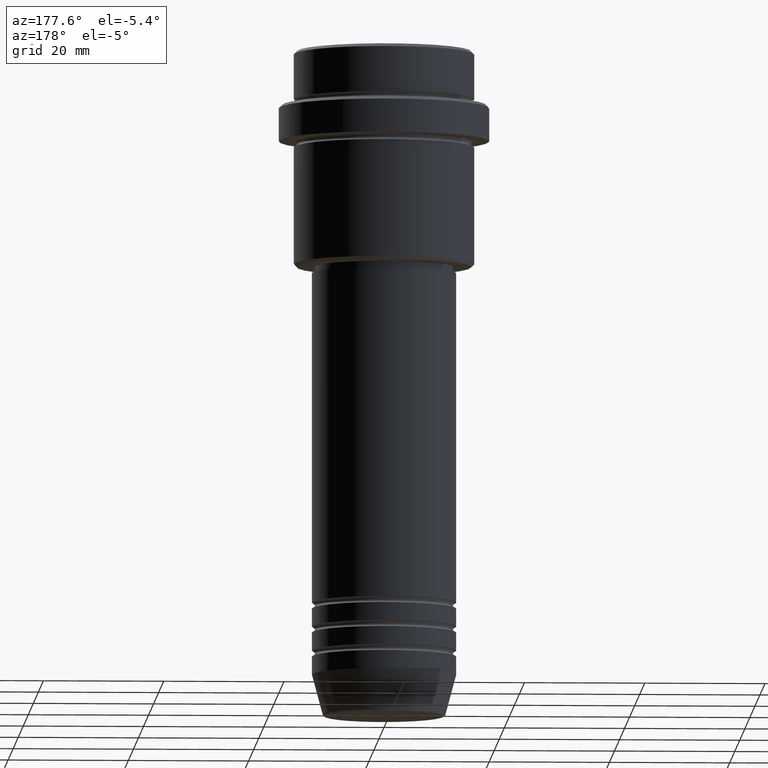
[diagram: clean part render]
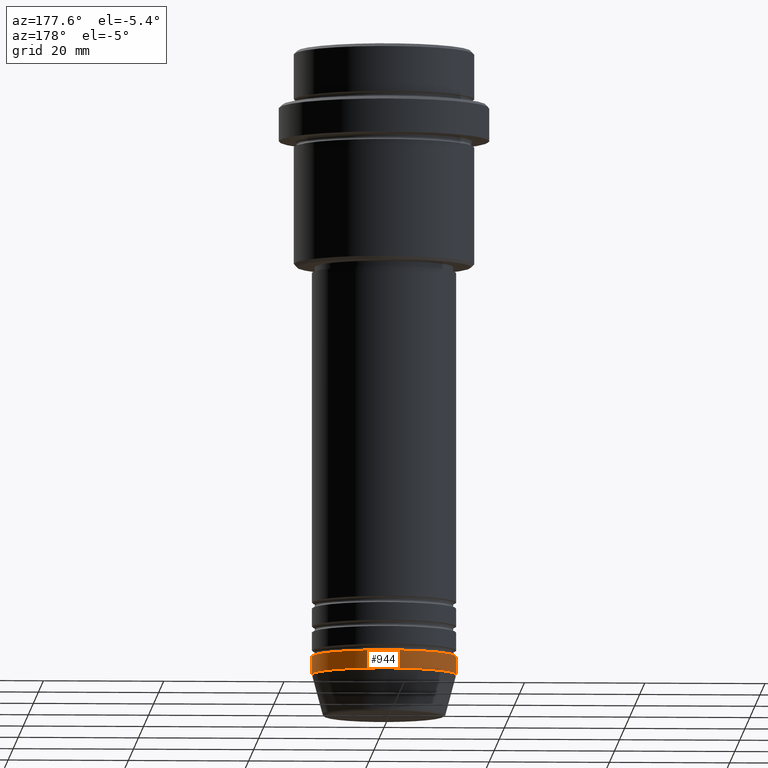
[diagram: same view with one face highlighted and labeled with its STEP entity id]
A machine part, auxiliary view. The second image highlights one B-rep face of the part: STEP entity #944.
In plain terms, the highlighted cylindrical surface (partial cylindrical patch) has radius 12 mm, axis along (-0, -0, 1).
Its self-contained STEP definition (entity closure, byte-faithful):
#7 = CYLINDRICAL_SURFACE ( 'NONE', #486, 12.00000000000000000 ) ;
#14 = FACE_OUTER_BOUND ( 'NONE', #1335, .T. ) ;
#81 = EDGE_CURVE ( 'NONE', #516, #347, #765, .T. ) ;
#127 = EDGE_CURVE ( 'NONE', #516, #507, #458, .T. ) ;
#136 = DIRECTION ( 'NONE',  ( -0.000000000000000000, -0.000000000000000000, 1.000000000000000000 ) ) ;
#171 = CARTESIAN_POINT ( 'NONE',  ( -12.00000000000000000, 1.469576158976823947E-15, -104.0000000000000000 ) ) ;
#212 = DIRECTION ( 'NONE',  ( 1.000000000000000000, 0.000000000000000000, 0.000000000000000000 ) ) ;
#347 = VERTEX_POINT ( 'NONE', #171 ) ;
#401 = CARTESIAN_POINT ( 'NONE',  ( 0.000000000000000000, 0.000000000000000000, -100.9999999999999858 ) ) ;
#441 = CARTESIAN_POINT ( 'NONE',  ( 0.000000000000000000, 0.000000000000000000, 0.000000000000000000 ) ) ;
#458 = LINE ( 'NONE', #1334, #616 ) ;
#486 = AXIS2_PLACEMENT_3D ( 'NONE', #441, #879, #212 ) ;
#493 = CARTESIAN_POINT ( 'NONE',  ( 12.00000000000000000, 0.000000000000000000, -100.9999999999999858 ) ) ;
#507 = VERTEX_POINT ( 'NONE', #493 ) ;
#516 = VERTEX_POINT ( 'NONE', #1150 ) ;
#531 = DIRECTION ( 'NONE',  ( -0.000000000000000000, -0.000000000000000000, 1.000000000000000000 ) ) ;
#563 = DIRECTION ( 'NONE',  ( 1.000000000000000000, 0.000000000000000000, 0.000000000000000000 ) ) ;
#582 = DIRECTION ( 'NONE',  ( -0.000000000000000000, -0.000000000000000000, 1.000000000000000000 ) ) ;
#616 = VECTOR ( 'NONE', #795, 1000.000000000000000 ) ;
#732 = ORIENTED_EDGE ( 'NONE', *, *, #1303, .F. ) ;
#759 = CARTESIAN_POINT ( 'NONE',  ( -12.00000000000000000, 1.469576158976823947E-15, -100.9999999999999858 ) ) ;
#765 = CIRCLE ( 'NONE', #1096, 12.00000000000000000 ) ;
#795 = DIRECTION ( 'NONE',  ( -0.000000000000000000, -0.000000000000000000, 1.000000000000000000 ) ) ;
#816 = LINE ( 'NONE', #1128, #829 ) ;
#829 = VECTOR ( 'NONE', #582, 1000.000000000000000 ) ;
#879 = DIRECTION ( 'NONE',  ( -0.000000000000000000, -0.000000000000000000, 1.000000000000000000 ) ) ;
#944 = ADVANCED_FACE ( 'NONE', ( #14 ), #7, .T. ) ;
#949 = DIRECTION ( 'NONE',  ( 1.000000000000000000, 0.000000000000000000, 0.000000000000000000 ) ) ;
#1096 = AXIS2_PLACEMENT_3D ( 'NONE', #1324, #136, #563 ) ;
#1128 = CARTESIAN_POINT ( 'NONE',  ( -12.00000000000000000, 1.469576158976823947E-15, 0.000000000000000000 ) ) ;
#1149 = AXIS2_PLACEMENT_3D ( 'NONE', #401, #531, #949 ) ;
#1150 = CARTESIAN_POINT ( 'NONE',  ( 12.00000000000000000, 0.000000000000000000, -104.0000000000000000 ) ) ;
#1203 = EDGE_CURVE ( 'NONE', #347, #1357, #816, .T. ) ;
#1210 = ORIENTED_EDGE ( 'NONE', *, *, #81, .T. ) ;
#1217 = ORIENTED_EDGE ( 'NONE', *, *, #1203, .T. ) ;
#1303 = EDGE_CURVE ( 'NONE', #507, #1357, #1311, .T. ) ;
#1311 = CIRCLE ( 'NONE', #1149, 12.00000000000000000 ) ;
#1324 = CARTESIAN_POINT ( 'NONE',  ( 0.000000000000000000, 0.000000000000000000, -104.0000000000000000 ) ) ;
#1333 = ORIENTED_EDGE ( 'NONE', *, *, #127, .F. ) ;
#1334 = CARTESIAN_POINT ( 'NONE',  ( 12.00000000000000000, 0.000000000000000000, 0.000000000000000000 ) ) ;
#1335 = EDGE_LOOP ( 'NONE', ( #1210, #1217, #732, #1333 ) ) ;
#1357 = VERTEX_POINT ( 'NONE', #759 ) ;